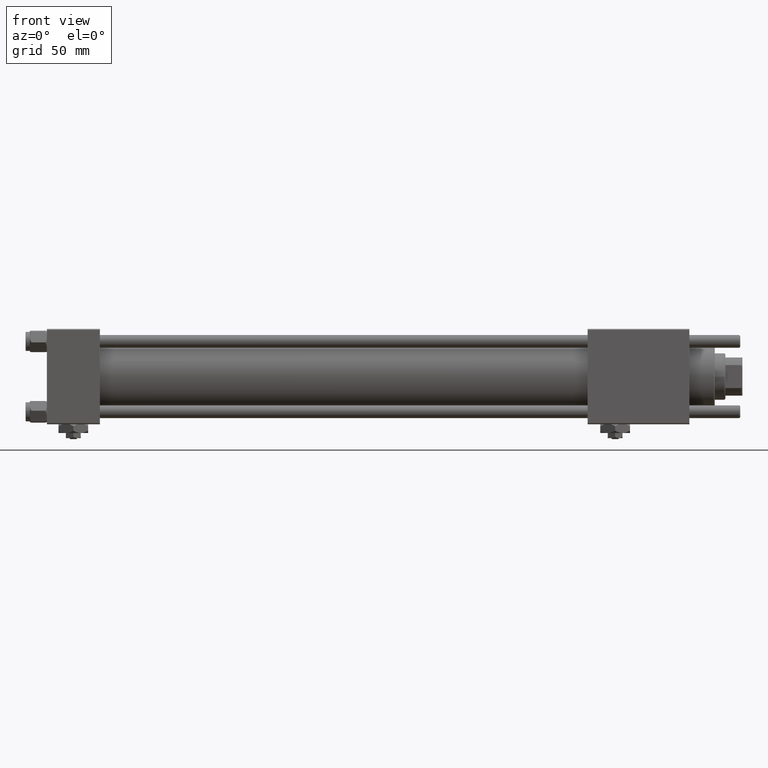
[diagram: clean part render]
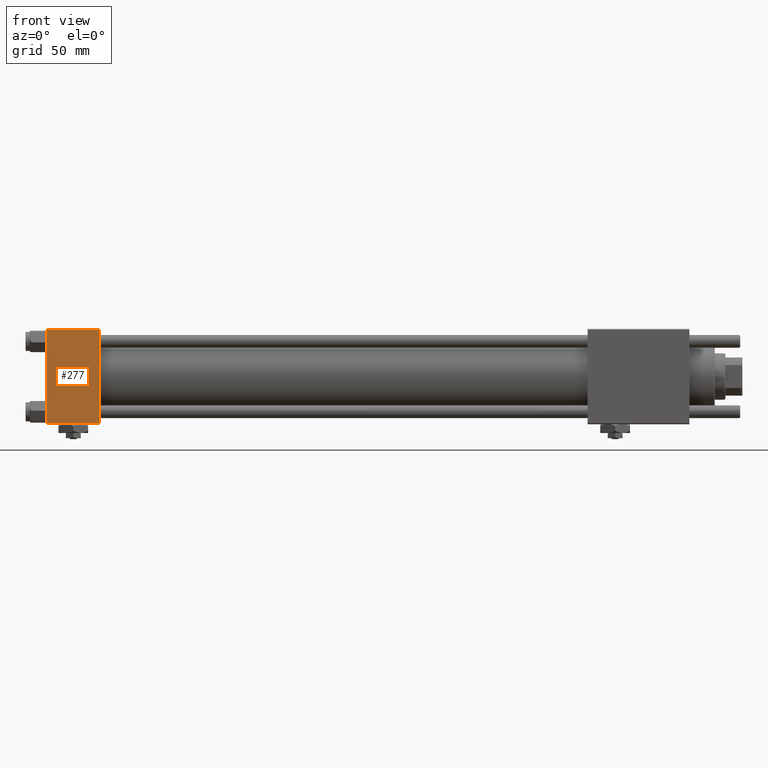
[diagram: same view with one face highlighted and labeled with its STEP entity id]
A machine part, front view. The second image highlights one B-rep face of the part: STEP entity #277.
In plain terms, the highlighted planar face has unit normal (0, 1, 0).
Its self-contained STEP definition (entity closure, byte-faithful):
#33 = DIRECTION ( 'NONE',  ( 1.000000000000000000, 0.000000000000000000, 0.000000000000000000 ) ) ;
#277 = ADVANCED_FACE ( 'NONE', ( #35678 ), #44783, .F. ) ;
#1265 = VERTEX_POINT ( 'NONE', #22105 ) ;
#2902 = DIRECTION ( 'NONE',  ( -1.000000000000000000, 0.000000000000000000, 0.000000000000000000 ) ) ;
#6342 = ORIENTED_EDGE ( 'NONE', *, *, #15831, .T. ) ;
#9990 = DIRECTION ( 'NONE',  ( 0.000000000000000000, 0.000000000000000000, -1.000000000000000000 ) ) ;
#11963 = ORIENTED_EDGE ( 'NONE', *, *, #19462, .T. ) ;
#12608 = DIRECTION ( 'NONE',  ( 0.000000000000000000, -0.000000000000000000, 1.000000000000000000 ) ) ;
#12788 = AXIS2_PLACEMENT_3D ( 'NONE', #21712, #54188, #12608 ) ;
#15016 = DIRECTION ( 'NONE',  ( 0.000000000000000000, 0.000000000000000000, -1.000000000000000000 ) ) ;
#15439 = EDGE_LOOP ( 'NONE', ( #11963, #44032, #30588, #6342 ) ) ;
#15831 = EDGE_CURVE ( 'NONE', #37511, #1265, #44482, .T. ) ;
#19462 = EDGE_CURVE ( 'NONE', #1265, #32520, #32923, .T. ) ;
#21712 = CARTESIAN_POINT ( 'NONE',  ( 25.00000000000000000, -22.50000000000000000, 22.50000000000000000 ) ) ;
#22105 = CARTESIAN_POINT ( 'NONE',  ( 0.000000000000000000, -22.50000000000000000, 22.00000000000000000 ) ) ;
#22183 = CARTESIAN_POINT ( 'NONE',  ( 25.00000000000000000, -22.50000000000000000, -21.99999999999997158 ) ) ;
#23086 = LINE ( 'NONE', #28839, #28416 ) ;
#26428 = CARTESIAN_POINT ( 'NONE',  ( 0.000000000000000000, -22.50000000000000000, -21.99999999999997158 ) ) ;
#28416 = VECTOR ( 'NONE', #33, 1000.000000000000000 ) ;
#28839 = CARTESIAN_POINT ( 'NONE',  ( 25.00000000000000000, -22.50000000000000000, -21.99999999999998579 ) ) ;
#30588 = ORIENTED_EDGE ( 'NONE', *, *, #51067, .F. ) ;
#30886 = CARTESIAN_POINT ( 'NONE',  ( 25.00000000000000000, -22.50000000000000000, 22.00000000000000000 ) ) ;
#32520 = VERTEX_POINT ( 'NONE', #26428 ) ;
#32923 = LINE ( 'NONE', #55992, #58779 ) ;
#35678 = FACE_OUTER_BOUND ( 'NONE', #15439, .T. ) ;
#37511 = VERTEX_POINT ( 'NONE', #30886 ) ;
#39912 = CARTESIAN_POINT ( 'NONE',  ( 25.00000000000000000, -22.50000000000000000, 22.00000000000000000 ) ) ;
#42193 = VECTOR ( 'NONE', #2902, 1000.000000000000000 ) ;
#42599 = VERTEX_POINT ( 'NONE', #22183 ) ;
#42703 = EDGE_CURVE ( 'NONE', #32520, #42599, #23086, .T. ) ;
#44032 = ORIENTED_EDGE ( 'NONE', *, *, #42703, .T. ) ;
#44482 = LINE ( 'NONE', #39912, #42193 ) ;
#44783 = PLANE ( 'NONE',  #12788 ) ;
#51067 = EDGE_CURVE ( 'NONE', #37511, #42599, #56117, .T. ) ;
#51878 = CARTESIAN_POINT ( 'NONE',  ( 25.00000000000000000, -22.50000000000000000, 22.50000000000000000 ) ) ;
#53750 = VECTOR ( 'NONE', #9990, 1000.000000000000000 ) ;
#54188 = DIRECTION ( 'NONE',  ( -0.000000000000000000, 1.000000000000000000, 0.000000000000000000 ) ) ;
#55992 = CARTESIAN_POINT ( 'NONE',  ( 0.000000000000000000, -22.50000000000000000, 22.50000000000000000 ) ) ;
#56117 = LINE ( 'NONE', #51878, #53750 ) ;
#58779 = VECTOR ( 'NONE', #15016, 1000.000000000000000 ) ;